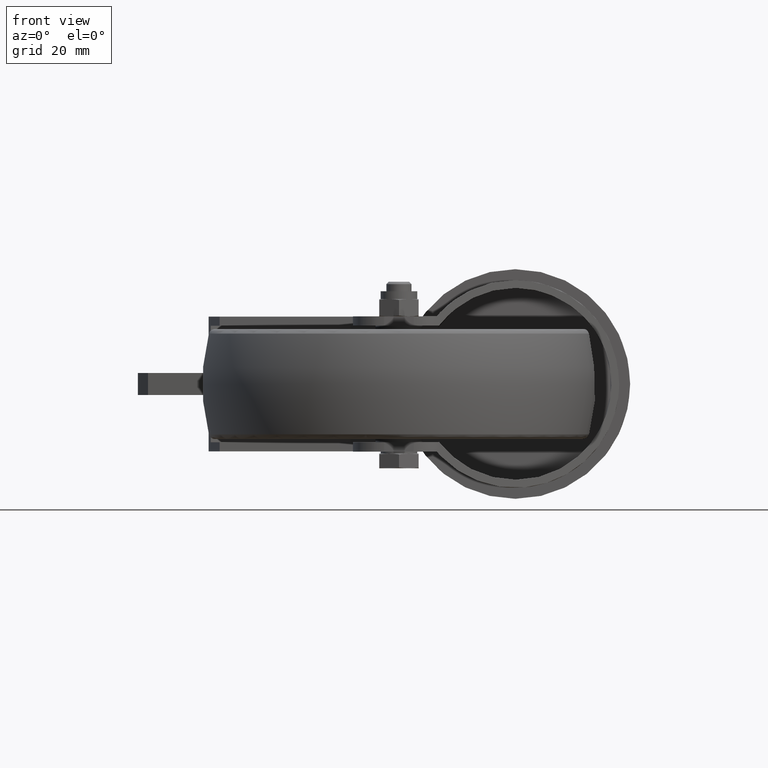
[diagram: clean part render]
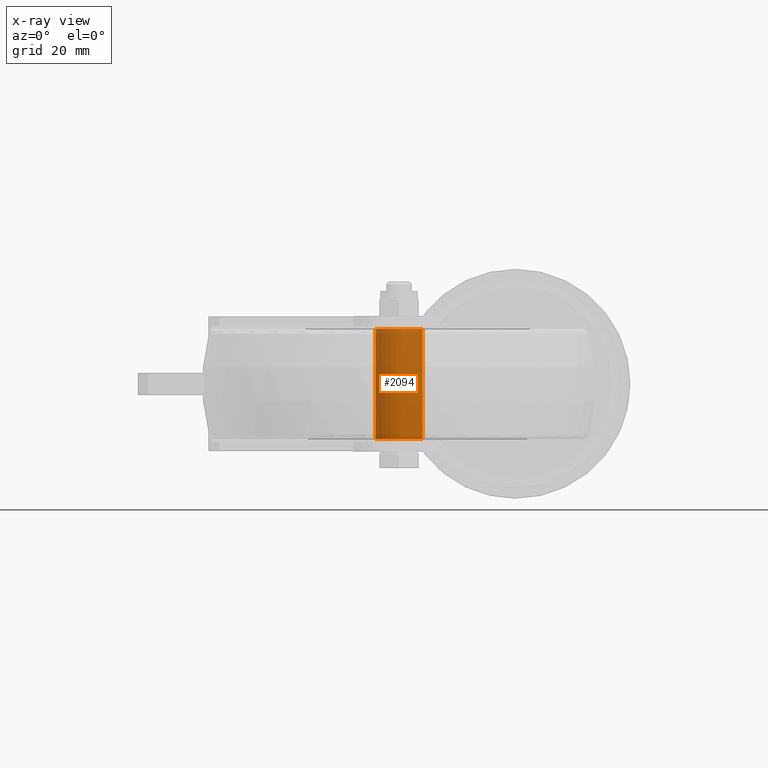
[diagram: x-ray — body ghosted, one internal face saturated and labeled with its STEP entity id]
A machine part, front view, then the same camera in x-ray: the body is ghosted and one INTERNAL B-rep face — a face not visible from any outside direction — is saturated and labeled: STEP entity #2094.
In plain terms, the highlighted cylindrical surface (bore or boss wall) has radius 7.5 mm, axis along (0, 0, 1).
Its self-contained STEP definition (entity closure, byte-faithful):
#346=FACE_OUTER_BOUND('',#492,.T.);
#492=EDGE_LOOP('',(#1876,#1877,#1878,#1879));
#584=CIRCLE('',#2418,7.5);
#585=CIRCLE('',#2420,7.5);
#753=LINE('',#3750,#886);
#886=VECTOR('',#2980,7.5);
#1051=VERTEX_POINT('',#3746);
#1052=VERTEX_POINT('',#3749);
#1329=EDGE_CURVE('',#1051,#1051,#584,.T.);
#1330=EDGE_CURVE('',#1051,#1052,#753,.T.);
#1331=EDGE_CURVE('',#1052,#1052,#585,.T.);
#1876=ORIENTED_EDGE('',*,*,#1329,.F.);
#1877=ORIENTED_EDGE('',*,*,#1330,.T.);
#1878=ORIENTED_EDGE('',*,*,#1331,.T.);
#1879=ORIENTED_EDGE('',*,*,#1330,.F.);
#1985=CYLINDRICAL_SURFACE('',#2419,7.5);
#2094=ADVANCED_FACE('',(#346),#1985,.F.);
#2418=AXIS2_PLACEMENT_3D('',#3747,#2976,#2977);
#2419=AXIS2_PLACEMENT_3D('',#3748,#2978,#2979);
#2420=AXIS2_PLACEMENT_3D('',#3751,#2981,#2982);
#2976=DIRECTION('center_axis',(0.,0.,1.));
#2977=DIRECTION('ref_axis',(1.,0.,0.));
#2978=DIRECTION('center_axis',(0.,0.,1.));
#2979=DIRECTION('ref_axis',(1.,0.,0.));
#2980=DIRECTION('',(0.,0.,1.));
#2981=DIRECTION('center_axis',(0.,0.,1.));
#2982=DIRECTION('ref_axis',(1.,0.,0.));
#3746=CARTESIAN_POINT('',(-7.5,-9.18485099360515E-16,-17.5));
#3747=CARTESIAN_POINT('Origin',(0.,0.,-17.5));
#3748=CARTESIAN_POINT('Origin',(0.,0.,17.5));
#3749=CARTESIAN_POINT('',(-7.5,-9.18485099360515E-16,17.5));
#3750=CARTESIAN_POINT('',(-7.5,-9.18485099360515E-16,17.5));
#3751=CARTESIAN_POINT('Origin',(0.,0.,17.5));